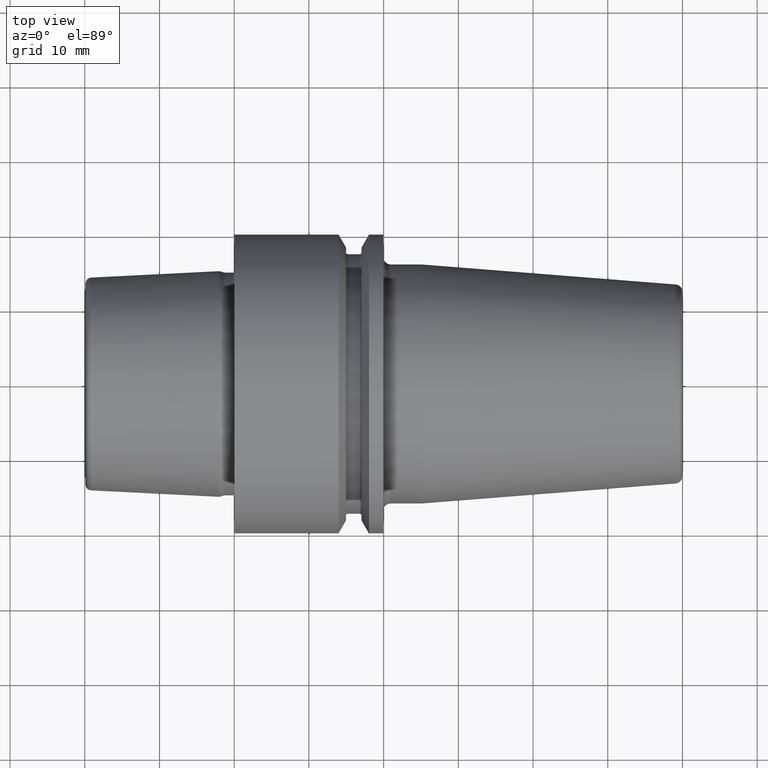
[diagram: clean part render]
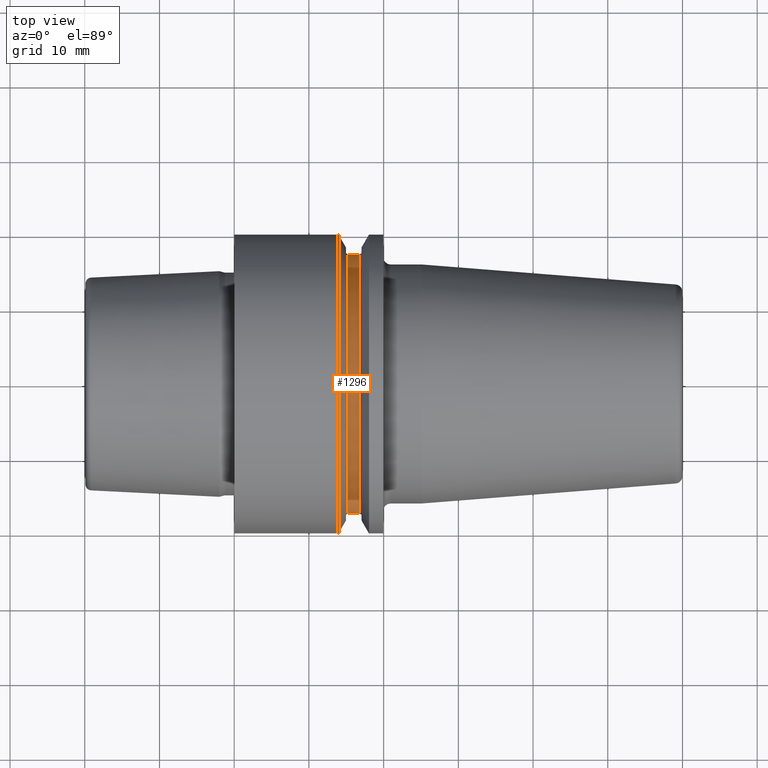
[diagram: same view with one face highlighted and labeled with its STEP entity id]
A machine part, top view. The second image highlights one B-rep face of the part: STEP entity #1296.
In plain terms, the highlighted cylindrical surface (partial cylindrical patch) has radius 17.375 mm, axis along (1, 0, 0).
Its self-contained STEP definition (entity closure, byte-faithful):
#372=CARTESIAN_POINT('',(1.67875E1,0.E0,0.E0));
#373=DIRECTION('',(1.E0,0.E0,0.E0));
#374=DIRECTION('',(0.E0,1.E0,0.E0));
#375=AXIS2_PLACEMENT_3D('',#372,#373,#374);
#377=CARTESIAN_POINT('',(1.52125E1,0.E0,0.E0));
#378=DIRECTION('',(1.E0,0.E0,0.E0));
#379=DIRECTION('',(0.E0,1.E0,0.E0));
#380=AXIS2_PLACEMENT_3D('',#377,#378,#379);
#382=DIRECTION('',(1.E0,0.E0,0.E0));
#383=VECTOR('',#382,1.575E0);
#384=CARTESIAN_POINT('',(1.52125E1,-1.7375E1,0.E0));
#385=LINE('',#384,#383);
#386=DIRECTION('',(-1.E0,0.E0,0.E0));
#387=VECTOR('',#386,1.575E0);
#388=CARTESIAN_POINT('',(1.67875E1,1.7375E1,0.E0));
#389=LINE('',#388,#387);
#619=CARTESIAN_POINT('',(1.52125E1,1.7375E1,0.E0));
#621=VERTEX_POINT('',#619);
#622=CARTESIAN_POINT('',(1.67875E1,1.7375E1,0.E0));
#624=VERTEX_POINT('',#622);
#627=CARTESIAN_POINT('',(1.52125E1,-1.7375E1,0.E0));
#629=VERTEX_POINT('',#627);
#630=CARTESIAN_POINT('',(1.67875E1,-1.7375E1,0.E0));
#632=VERTEX_POINT('',#630);
#1282=CARTESIAN_POINT('',(1.376132433122E1,0.E0,0.E0));
#1283=DIRECTION('',(1.E0,0.E0,0.E0));
#1284=DIRECTION('',(0.E0,-1.E0,0.E0));
#1285=AXIS2_PLACEMENT_3D('',#1282,#1283,#1284);
#1286=CYLINDRICAL_SURFACE('',#1285,1.7375E1);
#1288=ORIENTED_EDGE('',*,*,#1287,.F.);
#1289=ORIENTED_EDGE('',*,*,#1277,.T.);
#1291=ORIENTED_EDGE('',*,*,#1290,.F.);
#1293=ORIENTED_EDGE('',*,*,#1292,.F.);
#1294=EDGE_LOOP('',(#1288,#1289,#1291,#1293));
#1295=FACE_OUTER_BOUND('',#1294,.F.);
#1296=ADVANCED_FACE('',(#1295),#1286,.T.);
#376=CIRCLE('',#375,1.7375E1);
#381=CIRCLE('',#380,1.7375E1);
#1277=EDGE_CURVE('',#624,#632,#376,.T.);
#1287=EDGE_CURVE('',#624,#621,#389,.T.);
#1290=EDGE_CURVE('',#629,#632,#385,.T.);
#1292=EDGE_CURVE('',#621,#629,#381,.T.);